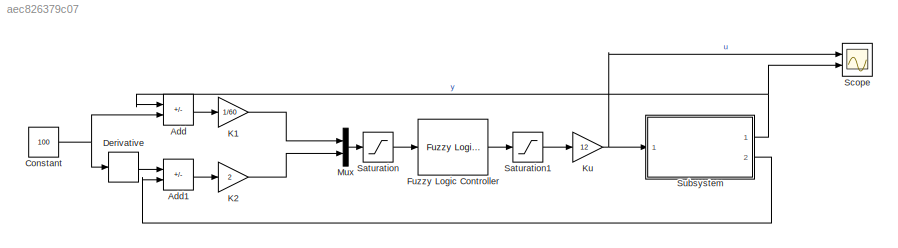
MODEL slx_aec826379c07
KIND model
CONFIG AbsTol = auto
CONFIG EnableMultiTasking = off
CONFIG FixedStep = 5
CONFIG MaxStep = auto
CONFIG MinStep = auto
CONFIG RelTol = 1e-3
CONFIG SampleTimeConstraint = Unconstrained
CONFIG SolverName = ode4
CONFIG StartTime = 0.0
CONFIG StopTime = 800
BLOCK [Sum] Add
  IconShape = rectangular
  Inputs = +-
  Ports = [2, 1]
BLOCK [Sum] Add1
  IconShape = rectangular
  Inputs = -+
  Ports = [2, 1]
BLOCK [Constant] Constant
  Value = 100
BLOCK [Derivative] Derivative
BLOCK [Reference] Fuzzy Logic Controller  REF=fuzblock/Fuzzy Logic   (lib defined in mdl_858b3b3e7478)
Controller
  Ports = [1, 1]
  SourceBlock = fuzblock/Fuzzy Logic \nController
  SourceProductBaseCode = FL
  SourceType = Fuzzy Inference System
BLOCK [Gain] K1
  Gain = 1/60
BLOCK [Gain] K2
  Gain = 2
BLOCK [Gain] Ku
  Gain = 12
BLOCK [Mux] Mux
  DisplayOption = bar
  Inputs = 2
  Ports = [2, 1]
BLOCK [Saturate] Saturation
  LowerLimit = -1
  UpperLimit = 1
BLOCK [Saturate] Saturation1
  LowerLimit = 0
  UpperLimit = 12
BLOCK [Scope] Scope
  Floating = off
  NumInputPorts = 2
  Ports = [2]
  ScopeSpecificationString = Simulink.scopes.TimeScopeBlockCfg('CurrentConfiguration', extmgr.ConfigurationSet(extmgr.Configuration('Core','General UI',true,'FigureColor',[1 1 1]),extmgr.Configuration('Core','Source UI',true),extmgr.Configuration('Sources','WiredSimulink',true),extmgr.Configuration('Visuals','Time Domain',true,'SerializedDisplays',{struct('MinYLimReal','-32.30774','MaxYLimReal','102.27006','YLabelReal','','Mi...<+2572ch>
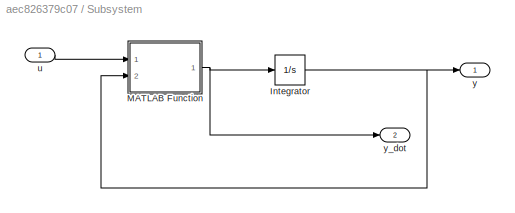
BLOCK [SubSystem] Subsystem
  Ports = [1, 2]
  RequestExecContextInheritance = off
BLOCK [Integrator] Subsystem/Integrator
  InitialCondition = y0
  Ports = [1, 1]
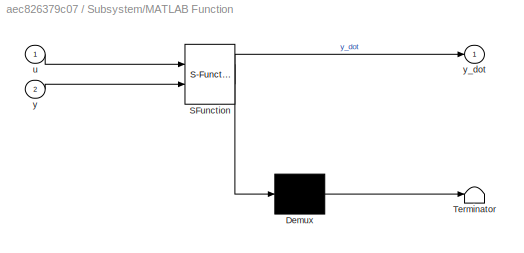
BLOCK [SubSystem] Subsystem/MATLAB Function
  ErrorFcn = Stateflow.Translate.translate
  PermitHierarchicalResolution = ExplicitOnly
  Ports = [2, 1]
  RequestExecContextInheritance = off
  SFBlockType = MATLAB Function
  TreatAsAtomicUnit = on
BLOCK [Demux] Subsystem/MATLAB Function/ Demux 
  Outputs = 1
  Ports = [1, 1]
BLOCK [S-Function] Subsystem/MATLAB Function/ SFunction 
  EnableBusSupport = on
  FunctionName = sf_sfun
  PortCounts = [2 2]
  Ports = [2, 2]
  SFcnIsStateOwnerBlock = off
  SFunctionDeploymentMode = off
  Tag = Stateflow S-Function 2
BLOCK [Terminator] Subsystem/MATLAB Function/ Terminator 
BLOCK [Inport] Subsystem/MATLAB Function/u
BLOCK [Inport] Subsystem/MATLAB Function/y
  Port = 2
BLOCK [Outport] Subsystem/MATLAB Function/y_dot
BLOCK [Inport] Subsystem/u
BLOCK [Outport] Subsystem/y
BLOCK [Outport] Subsystem/y_dot
  Port = 2
LINE Add1:1 -> K2:1
LINE Add:1 -> K1:1
NET Constant:1 -> Add:2, Derivative:1
LINE Derivative:1 -> Add1:1
LINE Fuzzy Logic Controller:1 -> Saturation1:1
LINE K1:1 -> Mux:1
LINE K2:1 -> Mux:2
NET Ku:1 -> Scope:1, Subsystem:1
LINE Mux:1 -> Saturation:1
LINE Saturation1:1 -> Ku:1
LINE Saturation:1 -> Fuzzy Logic Controller:1
NET Subsystem/Integrator:1 -> Subsystem/MATLAB Function:2, Subsystem/y:1
NET Subsystem/MATLAB Function:1 -> Subsystem/Integrator:1, Subsystem/y_dot:1
LINE Subsystem/u:1 -> Subsystem/MATLAB Function:1
NET Subsystem:1 -> Add:1, Scope:2
LINE Subsystem:2 -> Add1:2
note: NET lines group one-source signal fan-out (src -> all destinations, sorted); 1:1 wires keep LINE
CHART Subsystem/MATLAB Function states=1 transitions=1
  STATE_LABEL 'eML_blk_kernel()'
  STATE_LABEL 'SCRIPT:\nfunction y_dot= fcn(u,y)\nK = 140;\nA = 314;\nC = 0.9;\ng = 9.81;\ny_dot = (K*u-C*sqrt(2*g*y))/A;\n'
CHART  states=0 transitions=0
